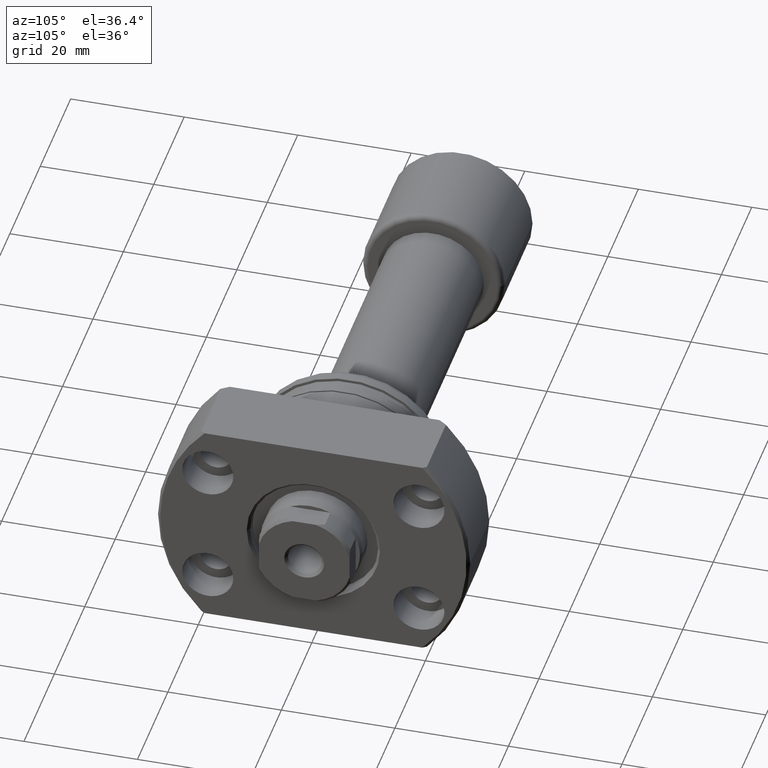
[diagram: clean part render]
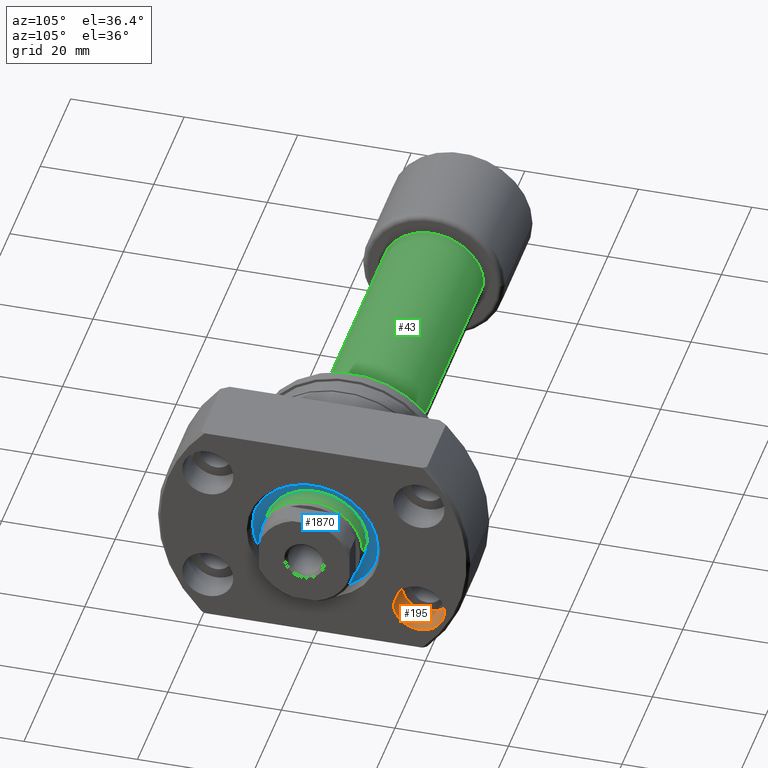
[diagram: same view with three faces highlighted in distinct colors, each labeled with its STEP entity id]
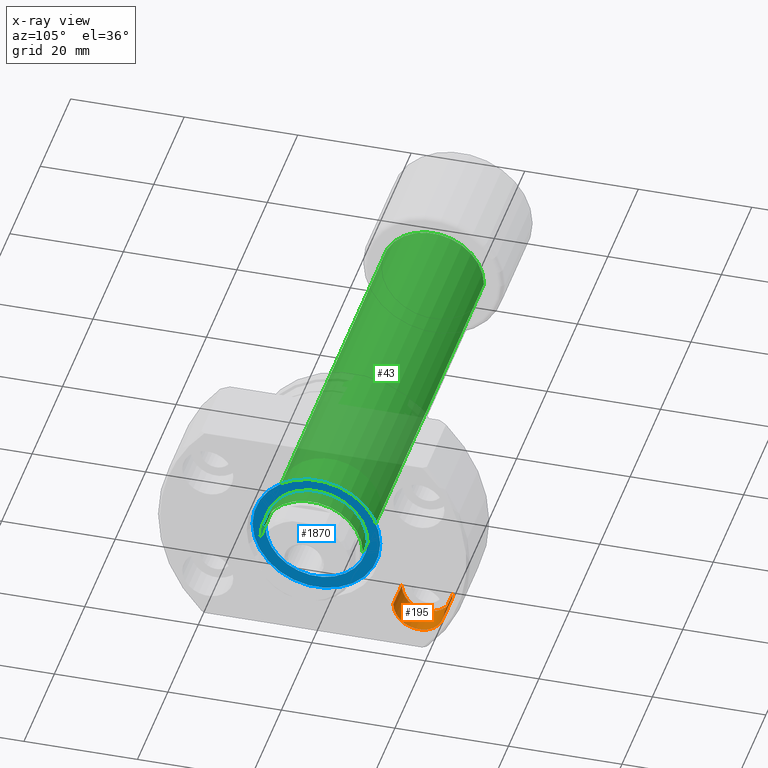
[diagram: x-ray of the same camera — body ghosted, the three highlighted faces saturated]
A machine part, auxiliary view with three faces highlighted in distinct colors.
The next image is the same camera in x-ray (body ghosted, the three faces saturated) — at least one of them is partly hidden behind the body in this view.
Their STEP definitions:

[orange] entity #195 — the highlighted cylindrical surface (edge-blend (fillet) strip) has radius 4.5 mm, axis along (1, -0, 0).
#13 = CARTESIAN_POINT ( 'NONE',  ( 26.50000000000041211, 14.09999999999923403, -10.75000000000000000 ) ) ;
#89 = CIRCLE ( 'NONE', #1902, 4.500000000000000888 ) ;
#90 = DIRECTION ( 'NONE',  ( 2.852656382717415620E-14, 1.000000000000000000, 0.000000000000000000 ) ) ;
#184 = AXIS2_PLACEMENT_3D ( 'NONE', #3207, #240, #1978 ) ;
#195 = ADVANCED_FACE ( 'NONE', ( #2465 ), #1960, .F. ) ;
#207 = CARTESIAN_POINT ( 'NONE',  ( 26.50000000000066791, 23.09999999999923403, -10.75000000000000000 ) ) ;
#240 = DIRECTION ( 'NONE',  ( 1.000000000000000000, -2.886466111666351885E-14, -0.000000000000000000 ) ) ;
#352 = AXIS2_PLACEMENT_3D ( 'NONE', #1323, #1216, #90 ) ;
#426 = LINE ( 'NONE', #1690, #1542 ) ;
#595 = ORIENTED_EDGE ( 'NONE', *, *, #2335, .T. ) ;
#851 = CARTESIAN_POINT ( 'NONE',  ( 21.00000000000066791, 23.09999999999939391, -10.75000000000000000 ) ) ;
#1116 = EDGE_LOOP ( 'NONE', ( #1528, #1911, #595, #1826 ) ) ;
#1175 = CARTESIAN_POINT ( 'NONE',  ( 21.00000000000041211, 14.09999999999939391, -10.75000000000000000 ) ) ;
#1216 = DIRECTION ( 'NONE',  ( 1.000000000000000000, -2.883293662278287419E-14, -3.155443620884046521E-30 ) ) ;
#1272 = CARTESIAN_POINT ( 'NONE',  ( 21.00000000000054001, 18.59999999999939391, -10.75000000000000000 ) ) ;
#1323 = CARTESIAN_POINT ( 'NONE',  ( 26.50000000000054001, 18.59999999999923403, -10.75000000000000000 ) ) ;
#1390 = DIRECTION ( 'NONE',  ( 1.000000000000000000, -2.886466111666351885E-14, -0.000000000000000000 ) ) ;
#1528 = ORIENTED_EDGE ( 'NONE', *, *, #2003, .F. ) ;
#1542 = VECTOR ( 'NONE', #2147, 1000.000000000000000 ) ;
#1627 = CARTESIAN_POINT ( 'NONE',  ( 21.00000000000066791, 23.09999999999939391, -10.75000000000000000 ) ) ;
#1690 = CARTESIAN_POINT ( 'NONE',  ( 21.00000000000041211, 14.09999999999939391, -10.75000000000000000 ) ) ;
#1733 = EDGE_CURVE ( 'NONE', #3049, #2661, #2383, .T. ) ;
#1826 = ORIENTED_EDGE ( 'NONE', *, *, #1733, .F. ) ;
#1902 = AXIS2_PLACEMENT_3D ( 'NONE', #1272, #2769, #2060 ) ;
#1911 = ORIENTED_EDGE ( 'NONE', *, *, #2215, .T. ) ;
#1960 = CYLINDRICAL_SURFACE ( 'NONE', #184, 4.500000000000000888 ) ;
#1978 = DIRECTION ( 'NONE',  ( 2.852656382717415620E-14, 1.000000000000000000, 0.000000000000000000 ) ) ;
#2003 = EDGE_CURVE ( 'NONE', #2647, #3049, #89, .T. ) ;
#2060 = DIRECTION ( 'NONE',  ( 2.852656382717415620E-14, 1.000000000000000000, 0.000000000000000000 ) ) ;
#2147 = DIRECTION ( 'NONE',  ( 1.000000000000000000, -2.886466111666351885E-14, -0.000000000000000000 ) ) ;
#2215 = EDGE_CURVE ( 'NONE', #2647, #2411, #426, .T. ) ;
#2335 = EDGE_CURVE ( 'NONE', #2411, #2661, #2741, .T. ) ;
#2383 = LINE ( 'NONE', #851, #2579 ) ;
#2411 = VERTEX_POINT ( 'NONE', #13 ) ;
#2465 = FACE_OUTER_BOUND ( 'NONE', #1116, .T. ) ;
#2579 = VECTOR ( 'NONE', #1390, 1000.000000000000000 ) ;
#2647 = VERTEX_POINT ( 'NONE', #1175 ) ;
#2661 = VERTEX_POINT ( 'NONE', #207 ) ;
#2741 = CIRCLE ( 'NONE', #352, 4.500000000000000888 ) ;
#2769 = DIRECTION ( 'NONE',  ( 1.000000000000000000, -2.883293662278287419E-14, -3.155443620884046521E-30 ) ) ;
#3049 = VERTEX_POINT ( 'NONE', #1627 ) ;
#3207 = CARTESIAN_POINT ( 'NONE',  ( 21.00000000000054001, 18.59999999999939391, -10.75000000000000000 ) ) ;

[blue] entity #1870 — the highlighted planar face has unit normal (1, -0, 0).
#38 = DIRECTION ( 'NONE',  ( 2.891205793294678701E-14, 1.000000000000000000, 0.000000000000000000 ) ) ;
#187 = VERTEX_POINT ( 'NONE', #1004 ) ;
#205 = FACE_BOUND ( 'NONE', #2598, .T. ) ;
#228 = DIRECTION ( 'NONE',  ( 1.000000000000000000, -2.886466111666351885E-14, 0.000000000000000000 ) ) ;
#252 = FACE_OUTER_BOUND ( 'NONE', #446, .T. ) ;
#275 = AXIS2_PLACEMENT_3D ( 'NONE', #3001, #2049, #38 ) ;
#446 = EDGE_LOOP ( 'NONE', ( #3071, #1622 ) ) ;
#478 = CARTESIAN_POINT ( 'NONE',  ( 24.50000000000000000, -6.492221922330912001E-13, 0.000000000000000000 ) ) ;
#488 = CARTESIAN_POINT ( 'NONE',  ( 24.50000000000000000, -6.492221922330912001E-13, 0.000000000000000000 ) ) ;
#512 = AXIS2_PLACEMENT_3D ( 'NONE', #488, #228, #1511 ) ;
#676 = DIRECTION ( 'NONE',  ( 1.000000000000000000, -2.886466111666351885E-14, 0.000000000000000000 ) ) ;
#693 = CIRCLE ( 'NONE', #275, 9.000000000000000000 ) ;
#764 = EDGE_CURVE ( 'NONE', #187, #2702, #2779, .T. ) ;
#949 = DIRECTION ( 'NONE',  ( 1.000000000000000000, -2.886466111666351885E-14, 0.000000000000000000 ) ) ;
#1004 = CARTESIAN_POINT ( 'NONE',  ( 24.50000000000026290, 8.999999999999291234, 0.000000000000000000 ) ) ;
#1193 = CARTESIAN_POINT ( 'NONE',  ( 24.50000000000000000, -6.492221922330912001E-13, 0.000000000000000000 ) ) ;
#1210 = CARTESIAN_POINT ( 'NONE',  ( 24.49999999999967315, -11.25000000000065015, 1.377727649040772586E-15 ) ) ;
#1234 = AXIS2_PLACEMENT_3D ( 'NONE', #478, #1470, #2493 ) ;
#1429 = VERTEX_POINT ( 'NONE', #1210 ) ;
#1434 = AXIS2_PLACEMENT_3D ( 'NONE', #2410, #949, #2918 ) ;
#1470 = DIRECTION ( 'NONE',  ( 1.000000000000000000, -2.886466111666351885E-14, 0.000000000000000000 ) ) ;
#1496 = CIRCLE ( 'NONE', #512, 11.25000000000000178 ) ;
#1511 = DIRECTION ( 'NONE',  ( 2.898915675410130686E-14, 1.000000000000000000, 0.000000000000000000 ) ) ;
#1513 = EDGE_CURVE ( 'NONE', #2702, #187, #693, .T. ) ;
#1541 = AXIS2_PLACEMENT_3D ( 'NONE', #1193, #676, #2687 ) ;
#1617 = VERTEX_POINT ( 'NONE', #1805 ) ;
#1622 = ORIENTED_EDGE ( 'NONE', *, *, #2352, .T. ) ;
#1805 = CARTESIAN_POINT ( 'NONE',  ( 24.50000000000032685, 11.24999999999935341, 0.000000000000000000 ) ) ;
#1870 = ADVANCED_FACE ( 'NONE', ( #205, #252 ), #1953, .T. ) ;
#1914 = EDGE_CURVE ( 'NONE', #1617, #1429, #2632, .T. ) ;
#1924 = ORIENTED_EDGE ( 'NONE', *, *, #1513, .F. ) ;
#1953 = PLANE ( 'NONE',  #1541 ) ;
#2049 = DIRECTION ( 'NONE',  ( 1.000000000000000000, -2.886466111666351885E-14, 0.000000000000000000 ) ) ;
#2352 = EDGE_CURVE ( 'NONE', #1429, #1617, #1496, .T. ) ;
#2410 = CARTESIAN_POINT ( 'NONE',  ( 24.50000000000000000, -7.071841973582561613E-13, 0.000000000000000000 ) ) ;
#2493 = DIRECTION ( 'NONE',  ( 2.898915675410130686E-14, 1.000000000000000000, 0.000000000000000000 ) ) ;
#2598 = EDGE_LOOP ( 'NONE', ( #2656, #1924 ) ) ;
#2632 = CIRCLE ( 'NONE', #1234, 11.25000000000000178 ) ;
#2656 = ORIENTED_EDGE ( 'NONE', *, *, #764, .F. ) ;
#2687 = DIRECTION ( 'NONE',  ( 2.886466111666351885E-14, 1.000000000000000000, 0.000000000000000000 ) ) ;
#2702 = VERTEX_POINT ( 'NONE', #2906 ) ;
#2779 = CIRCLE ( 'NONE', #1434, 9.000000000000000000 ) ;
#2906 = CARTESIAN_POINT ( 'NONE',  ( 24.49999999999974065, -9.000000000000706990, 1.102182119232659129E-15 ) ) ;
#2918 = DIRECTION ( 'NONE',  ( 2.891205793294678701E-14, 1.000000000000000000, 0.000000000000000000 ) ) ;
#3001 = CARTESIAN_POINT ( 'NONE',  ( 24.50000000000000000, -7.071841973582561613E-13, 0.000000000000000000 ) ) ;
#3071 = ORIENTED_EDGE ( 'NONE', *, *, #1914, .T. ) ;

[green] entity #43 — the highlighted cylindrical surface (partial cylindrical patch) has radius 9 mm, axis along (-1, -0, -0).
#43 = ADVANCED_FACE ( 'NONE', ( #1200 ), #2648, .T. ) ;
#169 = EDGE_CURVE ( 'NONE', #942, #2162, #2961, .T. ) ;
#259 = CARTESIAN_POINT ( 'NONE',  ( 9.625880898621695591E-17, -9.000000000000095923, 0.000000000000000000 ) ) ;
#311 = CARTESIAN_POINT ( 'NONE',  ( 20.39999999999999503, 2.181866337020893623E-16, 0.000000000000000000 ) ) ;
#511 = VERTEX_POINT ( 'NONE', #1301 ) ;
#526 = CARTESIAN_POINT ( 'NONE',  ( 100.0667575123237754, 1.070256321916529121E-15, 0.000000000000000000 ) ) ;
#556 = VERTEX_POINT ( 'NONE', #1800 ) ;
#612 = CIRCLE ( 'NONE', #2011, 9.000000000000000000 ) ;
#878 = EDGE_LOOP ( 'NONE', ( #1861, #1491, #1134, #2909 ) ) ;
#942 = VERTEX_POINT ( 'NONE', #1250 ) ;
#1012 = VECTOR ( 'NONE', #1719, 1000.000000000000000 ) ;
#1025 = AXIS2_PLACEMENT_3D ( 'NONE', #526, #1516, #1770 ) ;
#1134 = ORIENTED_EDGE ( 'NONE', *, *, #2036, .F. ) ;
#1200 = FACE_OUTER_BOUND ( 'NONE', #878, .T. ) ;
#1212 = CARTESIAN_POINT ( 'NONE',  ( 0.000000000000000000, 0.000000000000000000, 0.000000000000000000 ) ) ;
#1250 = CARTESIAN_POINT ( 'NONE',  ( 100.0667575123237754, -9.000000000000191847, 0.000000000000000000 ) ) ;
#1301 = CARTESIAN_POINT ( 'NONE',  ( 20.39999999999999503, 9.000000000000000000, 1.102182119232623630E-15 ) ) ;
#1490 = CARTESIAN_POINT ( 'NONE',  ( -9.625880898621695591E-17, 9.000000000000095923, 1.102182119232629744E-15 ) ) ;
#1491 = ORIENTED_EDGE ( 'NONE', *, *, #1498, .T. ) ;
#1498 = EDGE_CURVE ( 'NONE', #556, #511, #2971, .T. ) ;
#1516 = DIRECTION ( 'NONE',  ( -1.000000000000000000, -1.069542322069065801E-17, -0.000000000000000000 ) ) ;
#1673 = DIRECTION ( 'NONE',  ( -1.000000000000000000, -1.069542322069065801E-17, -0.000000000000000000 ) ) ;
#1719 = DIRECTION ( 'NONE',  ( -1.000000000000000000, -1.069542322069065801E-17, -0.000000000000000000 ) ) ;
#1770 = DIRECTION ( 'NONE',  ( 0.000000000000000000, -1.000000000000000000, 0.000000000000000000 ) ) ;
#1799 = DIRECTION ( 'NONE',  ( 0.000000000000000000, -1.000000000000000000, 0.000000000000000000 ) ) ;
#1800 = CARTESIAN_POINT ( 'NONE',  ( 100.0667575123237754, 9.000000000000195399, 1.102182119232641577E-15 ) ) ;
#1822 = VECTOR ( 'NONE', #2480, 1000.000000000000000 ) ;
#1861 = ORIENTED_EDGE ( 'NONE', *, *, #1988, .T. ) ;
#1988 = EDGE_CURVE ( 'NONE', #942, #556, #3000, .T. ) ;
#2011 = AXIS2_PLACEMENT_3D ( 'NONE', #311, #2096, #1799 ) ;
#2036 = EDGE_CURVE ( 'NONE', #2162, #511, #612, .T. ) ;
#2096 = DIRECTION ( 'NONE',  ( -1.000000000000000000, -1.069542322069065801E-17, -0.000000000000000000 ) ) ;
#2162 = VERTEX_POINT ( 'NONE', #2929 ) ;
#2163 = DIRECTION ( 'NONE',  ( 1.069542322069065955E-17, -1.000000000000000000, 0.000000000000000000 ) ) ;
#2251 = AXIS2_PLACEMENT_3D ( 'NONE', #1212, #1673, #2163 ) ;
#2480 = DIRECTION ( 'NONE',  ( -1.000000000000000000, -1.069542322069065801E-17, -0.000000000000000000 ) ) ;
#2648 = CYLINDRICAL_SURFACE ( 'NONE', #2251, 9.000000000000095923 ) ;
#2909 = ORIENTED_EDGE ( 'NONE', *, *, #169, .F. ) ;
#2929 = CARTESIAN_POINT ( 'NONE',  ( 20.39999999999999503, -9.000000000000000000, 0.000000000000000000 ) ) ;
#2961 = LINE ( 'NONE', #259, #1012 ) ;
#2971 = LINE ( 'NONE', #1490, #1822 ) ;
#3000 = CIRCLE ( 'NONE', #1025, 9.000000000000193623 ) ;